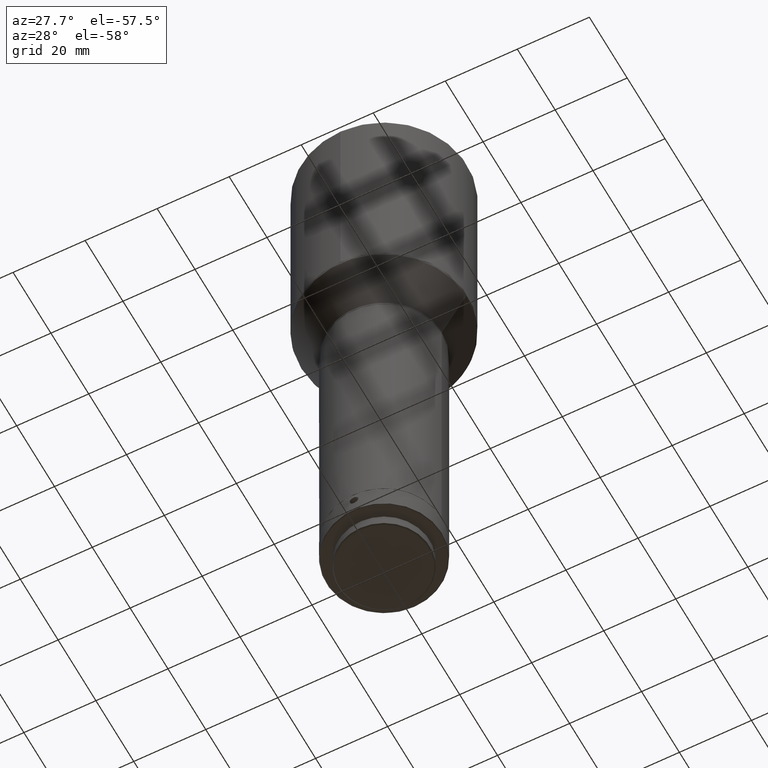
[diagram: clean part render]
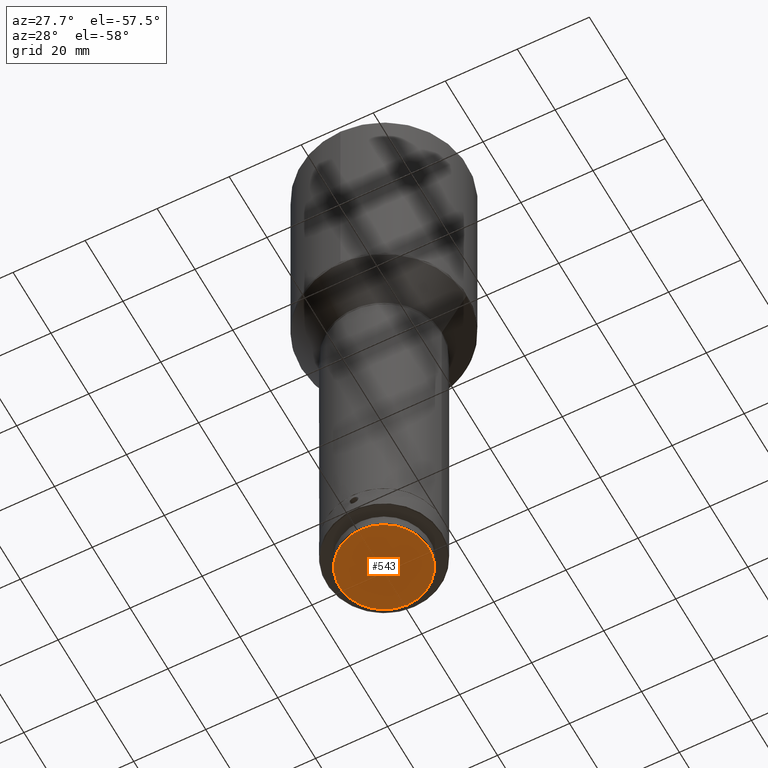
[diagram: same view with one face highlighted and labeled with its STEP entity id]
A machine part, auxiliary view. The second image highlights one B-rep face of the part: STEP entity #543.
In plain terms, the highlighted planar face has unit normal (0, -0, 1).
Its self-contained STEP definition (entity closure, byte-faithful):
#40 = CIRCLE ( 'NONE', #266, 12.40000000000001101 ) ;
#239 = PLANE ( 'NONE',  #894 ) ;
#266 = AXIS2_PLACEMENT_3D ( 'NONE', #282, #457, #450 ) ;
#282 = CARTESIAN_POINT ( 'NONE',  ( -8.673617379884035472E-15, -2.818988261181423964E-14, -1117.635156000000507 ) ) ;
#364 = ORIENTED_EDGE ( 'NONE', *, *, #1015, .F. ) ;
#409 = DIRECTION ( 'NONE',  ( 9.860761315262647568E-32, -3.443875572609958368E-19, 1.000000000000000000 ) ) ;
#450 = DIRECTION ( 'NONE',  ( 0.000000000000000000, -1.000000000000000000, 0.000000000000000000 ) ) ;
#457 = DIRECTION ( 'NONE',  ( 0.000000000000000000, -8.741913579725659654E-15, 1.000000000000000000 ) ) ;
#476 = FACE_OUTER_BOUND ( 'NONE', #1012, .T. ) ;
#510 = DIRECTION ( 'NONE',  ( 0.000000000000000000, -1.000000000000000000, -3.443875572609958368E-19 ) ) ;
#543 = ADVANCED_FACE ( 'NONE', ( #476 ), #239, .F. ) ;
#760 = CARTESIAN_POINT ( 'NONE',  ( 1.158948606467485672E-13, 9.749999999999984013, -1117.635156000000507 ) ) ;
#808 = CARTESIAN_POINT ( 'NONE',  ( -8.673617379884035472E-15, -12.40000000000003944, -1117.635156000000507 ) ) ;
#894 = AXIS2_PLACEMENT_3D ( 'NONE', #760, #409, #510 ) ;
#974 = VERTEX_POINT ( 'NONE', #808 ) ;
#1012 = EDGE_LOOP ( 'NONE', ( #364 ) ) ;
#1015 = EDGE_CURVE ( 'NONE', #974, #974, #40, .T. ) ;